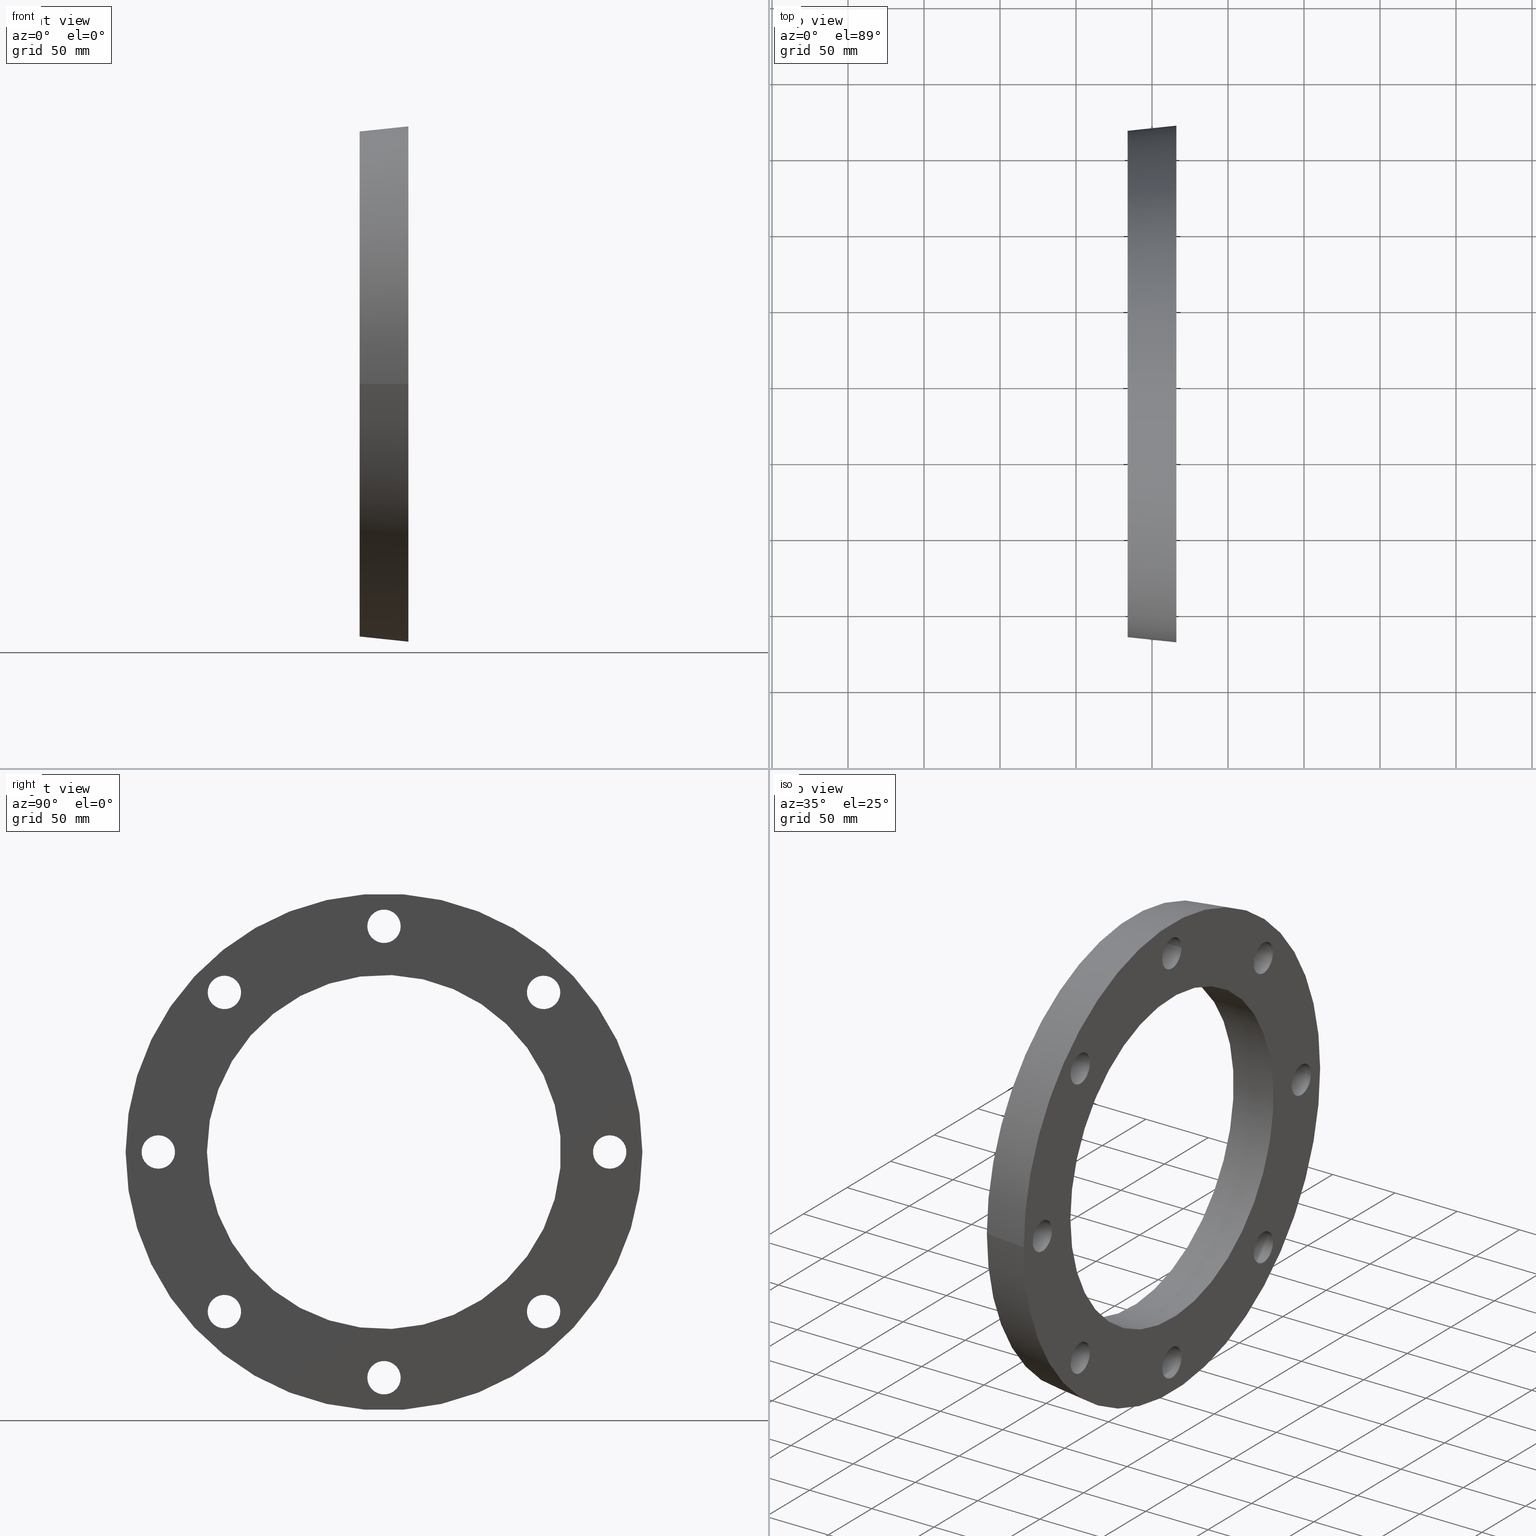
[diagram: canonical four-view strip — front | top / right | iso, engineering-drawing reading convention]
A machine part, canonical four-view strip (front | top / right | iso — engineering-drawing reading convention). The complete STEP part file that produces these views, byte-faithful:
ISO-10303-21;
HEADER;
/* Generated by software containing ST-Developer
 * from STEP Tools, Inc. (www.steptools.com) 
 */

FILE_DESCRIPTION(
/* description */ ('PLASSON BACKING FLANGE PVC 200'),
/* implementation_level */ '2;1');

FILE_NAME(
/* name */ 
'C:\\Dropbox\\KIMPROJECTS-Inventor\\99-16-3568-Processing\\PVC Catalog
 2017\\059000\\059000200.ipt.stp',
/* time_stamp */ '2017-12-07T16:06:38+02:00',
/* author */ ('KIM'),
/* organization */ (''),
/* preprocessor_version */ 'ST-DEVELOPER v15.6',
/* originating_system */ 'Autodesk Inventor 2015',
/* authorisation */ '');

FILE_SCHEMA (('AUTOMOTIVE_DESIGN { 1 0 10303 214 3 1 1 }'));
ENDSEC;

DATA;
#10=MECHANICAL_DESIGN_GEOMETRIC_PRESENTATION_REPRESENTATION('',(#13),#375);
#11=SHAPE_REPRESENTATION_RELATIONSHIP('SRR','None',#384,#12);
#12=ADVANCED_BREP_SHAPE_REPRESENTATION($,(#14),#374);
#13=STYLED_ITEM('',(#393),#14);
#14=MANIFOLD_SOLID_BREP('Solid1',#219);
#15=CONICAL_SURFACE('',#248,168.3,6.06492244544795);
#16=PLANE('',#245);
#17=PLANE('',#250);
#18=FACE_BOUND('',#59,.T.);
#19=FACE_BOUND('',#61,.T.);
#20=FACE_BOUND('',#63,.T.);
#21=FACE_BOUND('',#65,.T.);
#22=FACE_BOUND('',#67,.T.);
#23=FACE_BOUND('',#69,.T.);
#24=FACE_BOUND('',#71,.T.);
#25=FACE_BOUND('',#73,.T.);
#26=FACE_BOUND('',#75,.T.);
#27=FACE_BOUND('',#76,.T.);
#28=FACE_BOUND('',#77,.T.);
#29=FACE_BOUND('',#78,.T.);
#30=FACE_BOUND('',#79,.T.);
#31=FACE_BOUND('',#80,.T.);
#32=FACE_BOUND('',#81,.T.);
#33=FACE_BOUND('',#82,.T.);
#34=FACE_BOUND('',#83,.T.);
#35=FACE_BOUND('',#85,.T.);
#36=FACE_BOUND('',#87,.T.);
#37=FACE_BOUND('',#88,.T.);
#38=FACE_BOUND('',#89,.T.);
#39=FACE_BOUND('',#90,.T.);
#40=FACE_BOUND('',#91,.T.);
#41=FACE_BOUND('',#92,.T.);
#42=FACE_BOUND('',#93,.T.);
#43=FACE_BOUND('',#94,.T.);
#44=FACE_BOUND('',#95,.T.);
#45=FACE_BOUND('',#97,.T.);
#46=FACE_OUTER_BOUND('',#58,.T.);
#47=FACE_OUTER_BOUND('',#60,.T.);
#48=FACE_OUTER_BOUND('',#62,.T.);
#49=FACE_OUTER_BOUND('',#64,.T.);
#50=FACE_OUTER_BOUND('',#66,.T.);
#51=FACE_OUTER_BOUND('',#68,.T.);
#52=FACE_OUTER_BOUND('',#70,.T.);
#53=FACE_OUTER_BOUND('',#72,.T.);
#54=FACE_OUTER_BOUND('',#74,.T.);
#55=FACE_OUTER_BOUND('',#84,.T.);
#56=FACE_OUTER_BOUND('',#86,.T.);
#57=FACE_OUTER_BOUND('',#96,.T.);
#58=EDGE_LOOP('',(#158));
#59=EDGE_LOOP('',(#159));
#60=EDGE_LOOP('',(#160));
#61=EDGE_LOOP('',(#161));
#62=EDGE_LOOP('',(#162));
#63=EDGE_LOOP('',(#163));
#64=EDGE_LOOP('',(#164));
#65=EDGE_LOOP('',(#165));
#66=EDGE_LOOP('',(#166));
#67=EDGE_LOOP('',(#167));
#68=EDGE_LOOP('',(#168));
#69=EDGE_LOOP('',(#169));
#70=EDGE_LOOP('',(#170));
#71=EDGE_LOOP('',(#171));
#72=EDGE_LOOP('',(#172));
#73=EDGE_LOOP('',(#173));
#74=EDGE_LOOP('',(#174));
#75=EDGE_LOOP('',(#175));
#76=EDGE_LOOP('',(#176));
#77=EDGE_LOOP('',(#177));
#78=EDGE_LOOP('',(#178));
#79=EDGE_LOOP('',(#179));
#80=EDGE_LOOP('',(#180));
#81=EDGE_LOOP('',(#181));
#82=EDGE_LOOP('',(#182));
#83=EDGE_LOOP('',(#183));
#84=EDGE_LOOP('',(#184));
#85=EDGE_LOOP('',(#185));
#86=EDGE_LOOP('',(#186));
#87=EDGE_LOOP('',(#187));
#88=EDGE_LOOP('',(#188));
#89=EDGE_LOOP('',(#189));
#90=EDGE_LOOP('',(#190));
#91=EDGE_LOOP('',(#191));
#92=EDGE_LOOP('',(#192));
#93=EDGE_LOOP('',(#193));
#94=EDGE_LOOP('',(#194));
#95=EDGE_LOOP('',(#195));
#96=EDGE_LOOP('',(#196));
#97=EDGE_LOOP('',(#197));
#98=CIRCLE('',#222,11.);
#99=CIRCLE('',#223,11.);
#100=CIRCLE('',#225,11.);
#101=CIRCLE('',#226,11.);
#102=CIRCLE('',#228,11.);
#103=CIRCLE('',#229,11.);
#104=CIRCLE('',#231,11.);
#105=CIRCLE('',#232,11.);
#106=CIRCLE('',#234,11.);
#107=CIRCLE('',#235,11.);
#108=CIRCLE('',#237,11.);
#109=CIRCLE('',#238,11.);
#110=CIRCLE('',#240,11.);
#111=CIRCLE('',#241,11.);
#112=CIRCLE('',#243,11.);
#113=CIRCLE('',#244,11.);
#114=CIRCLE('',#246,170.);
#115=CIRCLE('',#247,116.5);
#116=CIRCLE('',#249,166.6);
#117=CIRCLE('',#251,116.5);
#118=VERTEX_POINT('',#321);
#119=VERTEX_POINT('',#323);
#120=VERTEX_POINT('',#326);
#121=VERTEX_POINT('',#328);
#122=VERTEX_POINT('',#331);
#123=VERTEX_POINT('',#333);
#124=VERTEX_POINT('',#336);
#125=VERTEX_POINT('',#338);
#126=VERTEX_POINT('',#341);
#127=VERTEX_POINT('',#343);
#128=VERTEX_POINT('',#346);
#129=VERTEX_POINT('',#348);
#130=VERTEX_POINT('',#351);
#131=VERTEX_POINT('',#353);
#132=VERTEX_POINT('',#356);
#133=VERTEX_POINT('',#358);
#134=VERTEX_POINT('',#361);
#135=VERTEX_POINT('',#363);
#136=VERTEX_POINT('',#366);
#137=VERTEX_POINT('',#369);
#138=EDGE_CURVE('',#118,#118,#98,.T.);
#139=EDGE_CURVE('',#119,#119,#99,.T.);
#140=EDGE_CURVE('',#120,#120,#100,.T.);
#141=EDGE_CURVE('',#121,#121,#101,.T.);
#142=EDGE_CURVE('',#122,#122,#102,.T.);
#143=EDGE_CURVE('',#123,#123,#103,.T.);
#144=EDGE_CURVE('',#124,#124,#104,.T.);
#145=EDGE_CURVE('',#125,#125,#105,.T.);
#146=EDGE_CURVE('',#126,#126,#106,.T.);
#147=EDGE_CURVE('',#127,#127,#107,.T.);
#148=EDGE_CURVE('',#128,#128,#108,.T.);
#149=EDGE_CURVE('',#129,#129,#109,.T.);
#150=EDGE_CURVE('',#130,#130,#110,.T.);
#151=EDGE_CURVE('',#131,#131,#111,.T.);
#152=EDGE_CURVE('',#132,#132,#112,.T.);
#153=EDGE_CURVE('',#133,#133,#113,.T.);
#154=EDGE_CURVE('',#134,#134,#114,.T.);
#155=EDGE_CURVE('',#135,#135,#115,.T.);
#156=EDGE_CURVE('',#136,#136,#116,.T.);
#157=EDGE_CURVE('',#137,#137,#117,.T.);
#158=ORIENTED_EDGE('',*,*,#138,.F.);
#159=ORIENTED_EDGE('',*,*,#139,.F.);
#160=ORIENTED_EDGE('',*,*,#140,.F.);
#161=ORIENTED_EDGE('',*,*,#141,.F.);
#162=ORIENTED_EDGE('',*,*,#142,.F.);
#163=ORIENTED_EDGE('',*,*,#143,.F.);
#164=ORIENTED_EDGE('',*,*,#144,.F.);
#165=ORIENTED_EDGE('',*,*,#145,.F.);
#166=ORIENTED_EDGE('',*,*,#146,.F.);
#167=ORIENTED_EDGE('',*,*,#147,.F.);
#168=ORIENTED_EDGE('',*,*,#148,.F.);
#169=ORIENTED_EDGE('',*,*,#149,.F.);
#170=ORIENTED_EDGE('',*,*,#150,.F.);
#171=ORIENTED_EDGE('',*,*,#151,.F.);
#172=ORIENTED_EDGE('',*,*,#152,.F.);
#173=ORIENTED_EDGE('',*,*,#153,.F.);
#174=ORIENTED_EDGE('',*,*,#154,.F.);
#175=ORIENTED_EDGE('',*,*,#139,.T.);
#176=ORIENTED_EDGE('',*,*,#141,.T.);
#177=ORIENTED_EDGE('',*,*,#143,.T.);
#178=ORIENTED_EDGE('',*,*,#145,.T.);
#179=ORIENTED_EDGE('',*,*,#147,.T.);
#180=ORIENTED_EDGE('',*,*,#149,.T.);
#181=ORIENTED_EDGE('',*,*,#151,.T.);
#182=ORIENTED_EDGE('',*,*,#153,.T.);
#183=ORIENTED_EDGE('',*,*,#155,.T.);
#184=ORIENTED_EDGE('',*,*,#156,.F.);
#185=ORIENTED_EDGE('',*,*,#154,.T.);
#186=ORIENTED_EDGE('',*,*,#156,.T.);
#187=ORIENTED_EDGE('',*,*,#138,.T.);
#188=ORIENTED_EDGE('',*,*,#140,.T.);
#189=ORIENTED_EDGE('',*,*,#142,.T.);
#190=ORIENTED_EDGE('',*,*,#144,.T.);
#191=ORIENTED_EDGE('',*,*,#146,.T.);
#192=ORIENTED_EDGE('',*,*,#148,.T.);
#193=ORIENTED_EDGE('',*,*,#150,.T.);
#194=ORIENTED_EDGE('',*,*,#152,.T.);
#195=ORIENTED_EDGE('',*,*,#157,.F.);
#196=ORIENTED_EDGE('',*,*,#155,.F.);
#197=ORIENTED_EDGE('',*,*,#157,.T.);
#198=CYLINDRICAL_SURFACE('',#221,11.);
#199=CYLINDRICAL_SURFACE('',#224,11.);
#200=CYLINDRICAL_SURFACE('',#227,11.);
#201=CYLINDRICAL_SURFACE('',#230,11.);
#202=CYLINDRICAL_SURFACE('',#233,11.);
#203=CYLINDRICAL_SURFACE('',#236,11.);
#204=CYLINDRICAL_SURFACE('',#239,11.);
#205=CYLINDRICAL_SURFACE('',#242,11.);
#206=CYLINDRICAL_SURFACE('',#252,116.5);
#207=ADVANCED_FACE('',(#46,#18),#198,.F.);
#208=ADVANCED_FACE('',(#47,#19),#199,.F.);
#209=ADVANCED_FACE('',(#48,#20),#200,.F.);
#210=ADVANCED_FACE('',(#49,#21),#201,.F.);
#211=ADVANCED_FACE('',(#50,#22),#202,.F.);
#212=ADVANCED_FACE('',(#51,#23),#203,.F.);
#213=ADVANCED_FACE('',(#52,#24),#204,.F.);
#214=ADVANCED_FACE('',(#53,#25),#205,.F.);
#215=ADVANCED_FACE('',(#54,#26,#27,#28,#29,#30,#31,#32,#33,#34),#16,.T.);
#216=ADVANCED_FACE('',(#55,#35),#15,.T.);
#217=ADVANCED_FACE('',(#56,#36,#37,#38,#39,#40,#41,#42,#43,#44),#17,.T.);
#218=ADVANCED_FACE('',(#57,#45),#206,.F.);
#219=CLOSED_SHELL('',(#207,#208,#209,#210,#211,#212,#213,#214,#215,#216,
#217,#218));
#220=AXIS2_PLACEMENT_3D('placement',#319,#253,#254);
#221=AXIS2_PLACEMENT_3D('',#320,#255,#256);
#222=AXIS2_PLACEMENT_3D('',#322,#257,#258);
#223=AXIS2_PLACEMENT_3D('',#324,#259,#260);
#224=AXIS2_PLACEMENT_3D('',#325,#261,#262);
#225=AXIS2_PLACEMENT_3D('',#327,#263,#264);
#226=AXIS2_PLACEMENT_3D('',#329,#265,#266);
#227=AXIS2_PLACEMENT_3D('',#330,#267,#268);
#228=AXIS2_PLACEMENT_3D('',#332,#269,#270);
#229=AXIS2_PLACEMENT_3D('',#334,#271,#272);
#230=AXIS2_PLACEMENT_3D('',#335,#273,#274);
#231=AXIS2_PLACEMENT_3D('',#337,#275,#276);
#232=AXIS2_PLACEMENT_3D('',#339,#277,#278);
#233=AXIS2_PLACEMENT_3D('',#340,#279,#280);
#234=AXIS2_PLACEMENT_3D('',#342,#281,#282);
#235=AXIS2_PLACEMENT_3D('',#344,#283,#284);
#236=AXIS2_PLACEMENT_3D('',#345,#285,#286);
#237=AXIS2_PLACEMENT_3D('',#347,#287,#288);
#238=AXIS2_PLACEMENT_3D('',#349,#289,#290);
#239=AXIS2_PLACEMENT_3D('',#350,#291,#292);
#240=AXIS2_PLACEMENT_3D('',#352,#293,#294);
#241=AXIS2_PLACEMENT_3D('',#354,#295,#296);
#242=AXIS2_PLACEMENT_3D('',#355,#297,#298);
#243=AXIS2_PLACEMENT_3D('',#357,#299,#300);
#244=AXIS2_PLACEMENT_3D('',#359,#301,#302);
#245=AXIS2_PLACEMENT_3D('',#360,#303,#304);
#246=AXIS2_PLACEMENT_3D('',#362,#305,#306);
#247=AXIS2_PLACEMENT_3D('',#364,#307,#308);
#248=AXIS2_PLACEMENT_3D('',#365,#309,#310);
#249=AXIS2_PLACEMENT_3D('',#367,#311,#312);
#250=AXIS2_PLACEMENT_3D('',#368,#313,#314);
#251=AXIS2_PLACEMENT_3D('',#370,#315,#316);
#252=AXIS2_PLACEMENT_3D('',#371,#317,#318);
#253=DIRECTION('axis',(0.,0.,1.));
#254=DIRECTION('refdir',(1.,0.,0.));
#255=DIRECTION('center_axis',(-1.,0.,0.));
#256=DIRECTION('ref_axis',(0.,-0.707106781186548,0.707106781186547));
#257=DIRECTION('center_axis',(1.,0.,0.));
#258=DIRECTION('ref_axis',(0.,-0.707106781186548,0.707106781186547));
#259=DIRECTION('center_axis',(-1.,0.,0.));
#260=DIRECTION('ref_axis',(0.,-0.707106781186548,0.707106781186547));
#261=DIRECTION('center_axis',(-1.,0.,0.));
#262=DIRECTION('ref_axis',(0.,-1.,-2.01858731750028E-16));
#263=DIRECTION('center_axis',(1.,0.,0.));
#264=DIRECTION('ref_axis',(0.,-1.,-2.01858731750028E-16));
#265=DIRECTION('center_axis',(-1.,0.,0.));
#266=DIRECTION('ref_axis',(0.,-1.,-2.01858731750028E-16));
#267=DIRECTION('center_axis',(-1.,0.,0.));
#268=DIRECTION('ref_axis',(0.,-0.707106781186547,-0.707106781186548));
#269=DIRECTION('center_axis',(1.,0.,0.));
#270=DIRECTION('ref_axis',(0.,-0.707106781186547,-0.707106781186548));
#271=DIRECTION('center_axis',(-1.,0.,0.));
#272=DIRECTION('ref_axis',(0.,-0.707106781186547,-0.707106781186548));
#273=DIRECTION('center_axis',(-1.,0.,0.));
#274=DIRECTION('ref_axis',(0.,2.01858731750028E-16,-1.));
#275=DIRECTION('center_axis',(1.,0.,0.));
#276=DIRECTION('ref_axis',(0.,2.01858731750028E-16,-1.));
#277=DIRECTION('center_axis',(-1.,0.,0.));
#278=DIRECTION('ref_axis',(0.,2.01858731750028E-16,-1.));
#279=DIRECTION('center_axis',(-1.,0.,0.));
#280=DIRECTION('ref_axis',(0.,0.707106781186548,-0.707106781186547));
#281=DIRECTION('center_axis',(1.,0.,0.));
#282=DIRECTION('ref_axis',(0.,0.707106781186548,-0.707106781186547));
#283=DIRECTION('center_axis',(-1.,0.,0.));
#284=DIRECTION('ref_axis',(0.,0.707106781186548,-0.707106781186547));
#285=DIRECTION('center_axis',(-1.,0.,0.));
#286=DIRECTION('ref_axis',(0.,1.,0.));
#287=DIRECTION('center_axis',(1.,0.,0.));
#288=DIRECTION('ref_axis',(0.,1.,0.));
#289=DIRECTION('center_axis',(-1.,0.,0.));
#290=DIRECTION('ref_axis',(0.,1.,0.));
#291=DIRECTION('center_axis',(-1.,0.,0.));
#292=DIRECTION('ref_axis',(0.,0.707106781186547,0.707106781186548));
#293=DIRECTION('center_axis',(1.,0.,0.));
#294=DIRECTION('ref_axis',(0.,0.707106781186547,0.707106781186548));
#295=DIRECTION('center_axis',(-1.,0.,0.));
#296=DIRECTION('ref_axis',(0.,0.707106781186547,0.707106781186548));
#297=DIRECTION('center_axis',(-1.,0.,0.));
#298=DIRECTION('ref_axis',(0.,0.,1.));
#299=DIRECTION('center_axis',(1.,0.,0.));
#300=DIRECTION('ref_axis',(0.,0.,1.));
#301=DIRECTION('center_axis',(-1.,0.,0.));
#302=DIRECTION('ref_axis',(0.,0.,1.));
#303=DIRECTION('center_axis',(1.,0.,0.));
#304=DIRECTION('ref_axis',(0.,0.,-1.));
#305=DIRECTION('center_axis',(-1.,0.,0.));
#306=DIRECTION('ref_axis',(0.,0.,1.));
#307=DIRECTION('center_axis',(-1.,0.,0.));
#308=DIRECTION('ref_axis',(0.,0.,1.));
#309=DIRECTION('center_axis',(1.,0.,0.));
#310=DIRECTION('ref_axis',(0.,-1.,0.));
#311=DIRECTION('center_axis',(-1.,0.,0.));
#312=DIRECTION('ref_axis',(0.,0.,1.));
#313=DIRECTION('center_axis',(-1.,0.,0.));
#314=DIRECTION('ref_axis',(0.,0.,1.));
#315=DIRECTION('center_axis',(-1.,0.,0.));
#316=DIRECTION('ref_axis',(0.,0.,1.));
#317=DIRECTION('center_axis',(-1.,0.,0.));
#318=DIRECTION('ref_axis',(0.,-1.,0.));
#319=CARTESIAN_POINT('',(0.,0.,0.));
#320=CARTESIAN_POINT('Origin',(16.,105.005357006202,105.005357006202));
#321=CARTESIAN_POINT('',(-16.,112.783531599254,97.2271824131503));
#322=CARTESIAN_POINT('Origin',(-16.,105.005357006202,105.005357006202));
#323=CARTESIAN_POINT('',(16.,112.783531599254,97.2271824131503));
#324=CARTESIAN_POINT('Origin',(16.,105.005357006202,105.005357006202));
#325=CARTESIAN_POINT('Origin',(16.,-2.66453525910038E-14,148.5));
#326=CARTESIAN_POINT('',(-16.,11.,148.5));
#327=CARTESIAN_POINT('Origin',(-16.,-2.66453525910038E-14,148.5));
#328=CARTESIAN_POINT('',(16.,11.,148.5));
#329=CARTESIAN_POINT('Origin',(16.,-2.66453525910038E-14,148.5));
#330=CARTESIAN_POINT('Origin',(16.,-105.005357006202,105.005357006202));
#331=CARTESIAN_POINT('',(-16.,-97.2271824131503,112.783531599254));
#332=CARTESIAN_POINT('Origin',(-16.,-105.005357006202,105.005357006202));
#333=CARTESIAN_POINT('',(16.,-97.2271824131503,112.783531599254));
#334=CARTESIAN_POINT('Origin',(16.,-105.005357006202,105.005357006202));
#335=CARTESIAN_POINT('Origin',(16.,-148.5,-2.66453525910038E-14));
#336=CARTESIAN_POINT('',(-16.,-148.5,11.));
#337=CARTESIAN_POINT('Origin',(-16.,-148.5,-2.66453525910038E-14));
#338=CARTESIAN_POINT('',(16.,-148.5,11.));
#339=CARTESIAN_POINT('Origin',(16.,-148.5,-2.66453525910038E-14));
#340=CARTESIAN_POINT('Origin',(16.,-105.005357006202,-105.005357006202));
#341=CARTESIAN_POINT('',(-16.,-112.783531599254,-97.2271824131503));
#342=CARTESIAN_POINT('Origin',(-16.,-105.005357006202,-105.005357006202));
#343=CARTESIAN_POINT('',(16.,-112.783531599254,-97.2271824131503));
#344=CARTESIAN_POINT('Origin',(16.,-105.005357006202,-105.005357006202));
#345=CARTESIAN_POINT('Origin',(16.,0.,-148.5));
#346=CARTESIAN_POINT('',(-16.,-11.,-148.5));
#347=CARTESIAN_POINT('Origin',(-16.,0.,-148.5));
#348=CARTESIAN_POINT('',(16.,-11.,-148.5));
#349=CARTESIAN_POINT('Origin',(16.,0.,-148.5));
#350=CARTESIAN_POINT('Origin',(16.,105.005357006202,-105.005357006202));
#351=CARTESIAN_POINT('',(-16.,97.2271824131503,-112.783531599254));
#352=CARTESIAN_POINT('Origin',(-16.,105.005357006202,-105.005357006202));
#353=CARTESIAN_POINT('',(16.,97.2271824131503,-112.783531599254));
#354=CARTESIAN_POINT('Origin',(16.,105.005357006202,-105.005357006202));
#355=CARTESIAN_POINT('Origin',(16.,148.5,0.));
#356=CARTESIAN_POINT('',(-16.,148.5,-11.));
#357=CARTESIAN_POINT('Origin',(-16.,148.5,0.));
#358=CARTESIAN_POINT('',(16.,148.5,-11.));
#359=CARTESIAN_POINT('Origin',(16.,148.5,0.));
#360=CARTESIAN_POINT('Origin',(16.,-170.,0.));
#361=CARTESIAN_POINT('',(16.,-170.,0.));
#362=CARTESIAN_POINT('Origin',(16.,0.,0.));
#363=CARTESIAN_POINT('',(16.,-116.5,0.));
#364=CARTESIAN_POINT('Origin',(16.,0.,0.));
#365=CARTESIAN_POINT('Origin',(1.33226762955019E-14,0.,0.));
#366=CARTESIAN_POINT('',(-16.,-166.6,0.));
#367=CARTESIAN_POINT('Origin',(-16.,0.,0.));
#368=CARTESIAN_POINT('Origin',(-16.,-116.5,0.));
#369=CARTESIAN_POINT('',(-16.,-116.5,0.));
#370=CARTESIAN_POINT('Origin',(-16.,0.,0.));
#371=CARTESIAN_POINT('Origin',(0.,0.,0.));
#372=UNCERTAINTY_MEASURE_WITH_UNIT(LENGTH_MEASURE(0.01),#376,
'DISTANCE_ACCURACY_VALUE',
'Maximum model space distance between geometric entities at asserted c
onnectivities');
#373=UNCERTAINTY_MEASURE_WITH_UNIT(LENGTH_MEASURE(1.E-6),#376,
'DISTANCE_ACCURACY_VALUE',
'Maximum model space distance between geometric entities at asserted c
onnectivities');
#374=(
GEOMETRIC_REPRESENTATION_CONTEXT(3)
GLOBAL_UNCERTAINTY_ASSIGNED_CONTEXT((#372))
GLOBAL_UNIT_ASSIGNED_CONTEXT((#376,#379,#377))
REPRESENTATION_CONTEXT('','3D')
);
#375=(
GEOMETRIC_REPRESENTATION_CONTEXT(3)
GLOBAL_UNCERTAINTY_ASSIGNED_CONTEXT((#373))
GLOBAL_UNIT_ASSIGNED_CONTEXT((#376,#379,#377))
REPRESENTATION_CONTEXT('','3D')
);
#376=(
LENGTH_UNIT()
NAMED_UNIT(*)
SI_UNIT(.MILLI.,.METRE.)
);
#377=(
NAMED_UNIT(*)
SI_UNIT($,.STERADIAN.)
SOLID_ANGLE_UNIT()
);
#378=DIMENSIONAL_EXPONENTS(0.,0.,0.,0.,0.,0.,0.);
#379=(
CONVERSION_BASED_UNIT('degree',#381)
NAMED_UNIT(#378)
PLANE_ANGLE_UNIT()
);
#380=(
NAMED_UNIT(*)
PLANE_ANGLE_UNIT()
SI_UNIT($,.RADIAN.)
);
#381=PLANE_ANGLE_MEASURE_WITH_UNIT(PLANE_ANGLE_MEASURE(0.01745329252),#380);
#382=SHAPE_DEFINITION_REPRESENTATION(#383,#384);
#383=PRODUCT_DEFINITION_SHAPE('',$,#386);
#384=SHAPE_REPRESENTATION('',(#220),#374);
#385=PRODUCT_DEFINITION_CONTEXT('part definition',#390,'design');
#386=PRODUCT_DEFINITION('059000200','059000200',#387,#385);
#387=PRODUCT_DEFINITION_FORMATION('',$,#392);
#388=PRODUCT_RELATED_PRODUCT_CATEGORY('059000200','059000200',(#392));
#389=APPLICATION_PROTOCOL_DEFINITION('international standard',
'automotive_design',2009,#390);
#390=APPLICATION_CONTEXT(
'Core Data for Automotive Mechanical Design Process');
#391=PRODUCT_CONTEXT('part definition',#390,'mechanical');
#392=PRODUCT('059000200','059000200',$,(#391));
#393=PRESENTATION_STYLE_ASSIGNMENT((#394));
#394=SURFACE_STYLE_USAGE(.BOTH.,#395);
#395=SURFACE_SIDE_STYLE($,(#396));
#396=SURFACE_STYLE_FILL_AREA(#397);
#397=FILL_AREA_STYLE($,(#398));
#398=FILL_AREA_STYLE_COLOUR($,#399);
#399=COLOUR_RGB('',0.749019607843137,0.749019607843137,0.749019607843137);
ENDSEC;
END-ISO-10303-21;
